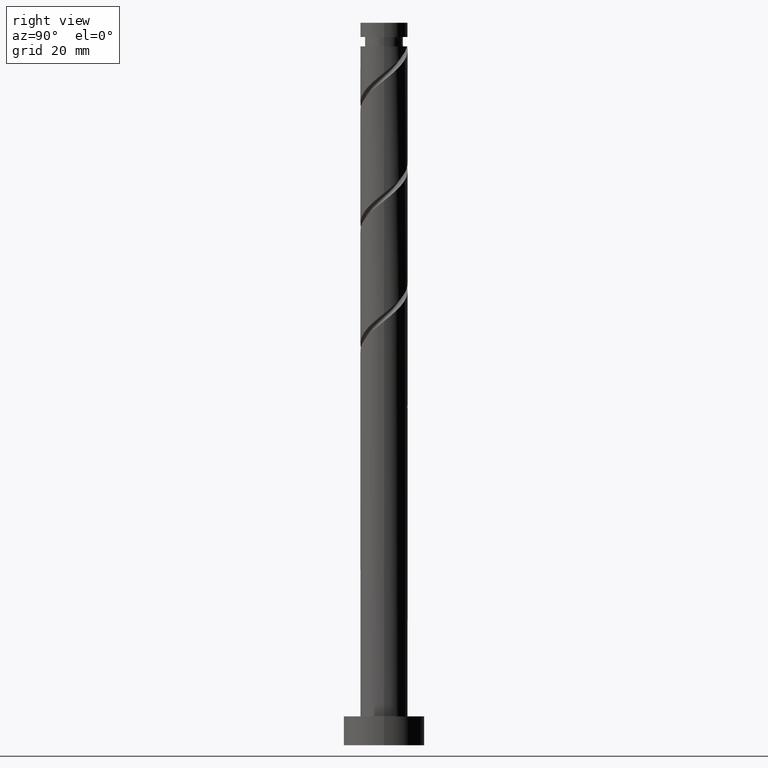
[diagram: clean part render]
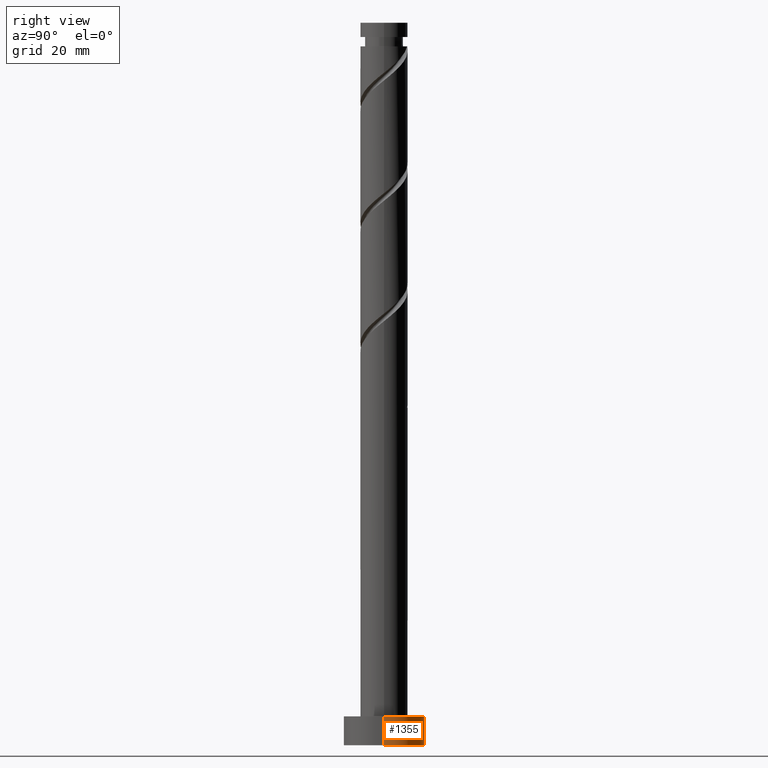
[diagram: same view with one face highlighted and labeled with its STEP entity id]
A machine part, right view. The second image highlights one B-rep face of the part: STEP entity #1355.
In plain terms, the highlighted cylindrical surface (partial cylindrical patch) has radius 7 mm, axis along (-0, -0, -1).
Its self-contained STEP definition (entity closure, byte-faithful):
#30 = CARTESIAN_POINT ( 'NONE',  ( 7.000000000000000000, 8.572527594031473190E-16, 5.000000000000000000 ) ) ;
#68 = CYLINDRICAL_SURFACE ( 'NONE', #1432, 7.000000000000000000 ) ;
#186 = VECTOR ( 'NONE', #1256, 1000.000000000000000 ) ;
#214 = ORIENTED_EDGE ( 'NONE', *, *, #621, .T. ) ;
#232 = EDGE_CURVE ( 'NONE', #776, #1298, #851, .T. ) ;
#286 = DIRECTION ( 'NONE',  ( 1.000000000000000000, 0.000000000000000000, 0.000000000000000000 ) ) ;
#330 = AXIS2_PLACEMENT_3D ( 'NONE', #637, #668, #286 ) ;
#371 = DIRECTION ( 'NONE',  ( -0.000000000000000000, -0.000000000000000000, -1.000000000000000000 ) ) ;
#417 = CARTESIAN_POINT ( 'NONE',  ( 7.000000000000000000, 8.572527594031473190E-16, 0.000000000000000000 ) ) ;
#446 = CARTESIAN_POINT ( 'NONE',  ( 0.000000000000000000, 0.000000000000000000, 5.000000000000000000 ) ) ;
#522 = EDGE_CURVE ( 'NONE', #1298, #584, #622, .T. ) ;
#583 = VECTOR ( 'NONE', #371, 1000.000000000000000 ) ;
#584 = VERTEX_POINT ( 'NONE', #994 ) ;
#621 = EDGE_CURVE ( 'NONE', #776, #624, #766, .T. ) ;
#622 = LINE ( 'NONE', #1349, #583 ) ;
#624 = VERTEX_POINT ( 'NONE', #417 ) ;
#637 = CARTESIAN_POINT ( 'NONE',  ( 0.000000000000000000, 0.000000000000000000, 5.000000000000000000 ) ) ;
#668 = DIRECTION ( 'NONE',  ( 0.000000000000000000, 0.000000000000000000, 1.000000000000000000 ) ) ;
#716 = ORIENTED_EDGE ( 'NONE', *, *, #522, .F. ) ;
#766 = LINE ( 'NONE', #1248, #186 ) ;
#776 = VERTEX_POINT ( 'NONE', #30 ) ;
#803 = FACE_OUTER_BOUND ( 'NONE', #1049, .T. ) ;
#808 = DIRECTION ( 'NONE',  ( 0.000000000000000000, 0.000000000000000000, 1.000000000000000000 ) ) ;
#835 = ORIENTED_EDGE ( 'NONE', *, *, #928, .T. ) ;
#851 = CIRCLE ( 'NONE', #330, 7.000000000000000000 ) ;
#913 = CARTESIAN_POINT ( 'NONE',  ( 0.000000000000000000, 0.000000000000000000, 0.000000000000000000 ) ) ;
#922 = DIRECTION ( 'NONE',  ( -1.000000000000000000, 0.000000000000000000, 0.000000000000000000 ) ) ;
#928 = EDGE_CURVE ( 'NONE', #624, #584, #1177, .T. ) ;
#994 = CARTESIAN_POINT ( 'NONE',  ( -7.000000000000000000, 0.000000000000000000, 0.000000000000000000 ) ) ;
#1038 = ORIENTED_EDGE ( 'NONE', *, *, #232, .F. ) ;
#1049 = EDGE_LOOP ( 'NONE', ( #1038, #214, #835, #716 ) ) ;
#1177 = CIRCLE ( 'NONE', #1280, 7.000000000000000000 ) ;
#1248 = CARTESIAN_POINT ( 'NONE',  ( 7.000000000000000000, 8.572527594031473190E-16, 5.000000000000000000 ) ) ;
#1256 = DIRECTION ( 'NONE',  ( -0.000000000000000000, -0.000000000000000000, -1.000000000000000000 ) ) ;
#1280 = AXIS2_PLACEMENT_3D ( 'NONE', #913, #808, #1317 ) ;
#1298 = VERTEX_POINT ( 'NONE', #1509 ) ;
#1317 = DIRECTION ( 'NONE',  ( 1.000000000000000000, 0.000000000000000000, 0.000000000000000000 ) ) ;
#1349 = CARTESIAN_POINT ( 'NONE',  ( -7.000000000000000000, 0.000000000000000000, 5.000000000000000000 ) ) ;
#1355 = ADVANCED_FACE ( 'NONE', ( #803 ), #68, .T. ) ;
#1407 = DIRECTION ( 'NONE',  ( -0.000000000000000000, -0.000000000000000000, -1.000000000000000000 ) ) ;
#1432 = AXIS2_PLACEMENT_3D ( 'NONE', #446, #1407, #922 ) ;
#1509 = CARTESIAN_POINT ( 'NONE',  ( -7.000000000000000000, 0.000000000000000000, 5.000000000000000000 ) ) ;